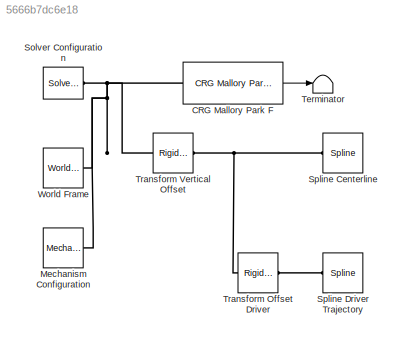
MODEL slx_5666b7dc6e18
KIND model
CONFIG AbsTol = auto
CONFIG EnableMultiTasking = on
CONFIG FixedStep = auto
CONFIG MaxStep = auto
CONFIG MinStep = auto
CONFIG RelTol = 1e-3
CONFIG SampleTimeConstraint = Unconstrained
CONFIG SolverName = VariableStepAuto
CONFIG StartTime = 0.0
CONFIG StopTime = 10.0
WORKSPACE source: MATLAB code (in-file)
WORKSPACE code: load CRG_Mallory_Park_f_dat
WORKSPACE code: load CRG_Mallory_Park_f_trajectory_default
BLOCK [Reference] CRG Mallory Park F  REF=sm_car_scene_crg_mallory_park_f/CRG Mallory Park F  (lib defined in slx_1ba76757f56c)
  Ports = [0, 1, 0, 0, 0, 1]
  SourceBlock = sm_car_scene_crg_mallory_park_f/CRG Mallory Park F
BLOCK [Reference] Mechanism Configuration  REF=sm_lib/Utilities/Mechanism
Configuration
  Ports = [0, 0, 0, 0, 0, 0, 1]
  SourceBlock = sm_lib/Utilities/Mechanism\nConfiguration
  SourceProductBaseCode = MS
  SourceType = Mechanism\nConfiguration
BLOCK [Reference] Solver Configuration  REF=nesl_utility/Solver
Configuration
  Ports = [0, 0, 0, 0, 0, 0, 1]
  SourceBlock = nesl_utility/Solver\nConfiguration
  SourceProductBaseCode = SS,PW,VE
  SourceType = Solver\nConfiguration
BLOCK [Reference] Spline Centerline  REF=sm_lib/Curves and Surfaces/Spline
  Ports = [0, 0, 0, 0, 0, 1, 1]
  SourceBlock = sm_lib/Curves and Surfaces/Spline
  SourceProductBaseCode = MS
  SourceType = Spline
BLOCK [Reference] Spline Driver Trajectory  REF=sm_lib/Curves and Surfaces/Spline
  Ports = [0, 0, 0, 0, 0, 1, 1]
  SourceBlock = sm_lib/Curves and Surfaces/Spline
  SourceProductBaseCode = MS
  SourceType = Spline
BLOCK [Terminator] Terminator
BLOCK [Reference] Transform Offset Driver  REF=sm_lib/Frames and
Transforms/Rigid
Transform
  Ports = [0, 0, 0, 0, 0, 1, 1]
  SourceBlock = sm_lib/Frames and\nTransforms/Rigid\nTransform
  SourceProductBaseCode = MS
  SourceType = Rigid\nTransform
BLOCK [Reference] Transform Vertical Offset  REF=sm_lib/Frames and
Transforms/Rigid
Transform
  Ports = [0, 0, 0, 0, 0, 1, 1]
  SourceBlock = sm_lib/Frames and\nTransforms/Rigid\nTransform
  SourceProductBaseCode = MS
  SourceType = Rigid\nTransform
BLOCK [Reference] World Frame  REF=sm_lib/Frames and
Transforms/World Frame
  Ports = [0, 0, 0, 0, 0, 0, 1]
  SourceBlock = sm_lib/Frames and\nTransforms/World Frame
  SourceProductBaseCode = MS
  SourceType = World Frame
LINE CRG Mallory Park F:1 -> Terminator:1
PNET net1: CRG Mallory Park F:LConn1 -- Mechanism Configuration:RConn1 -- Solver Configuration:RConn1 -- Transform Vertical Offset:LConn1 -- World Frame:RConn1
PNET net2: Spline Centerline:LConn1 -- Transform Offset Driver:LConn1 -- Transform Vertical Offset:RConn1
PLINE Spline Driver Trajectory:LConn1 -- Transform Offset Driver:RConn1
note: PNET lines group multi-terminal physical nets as a canonical sorted terminal list (undirected conserving connections); 2-terminal nets keep the pairwise PLINE form
